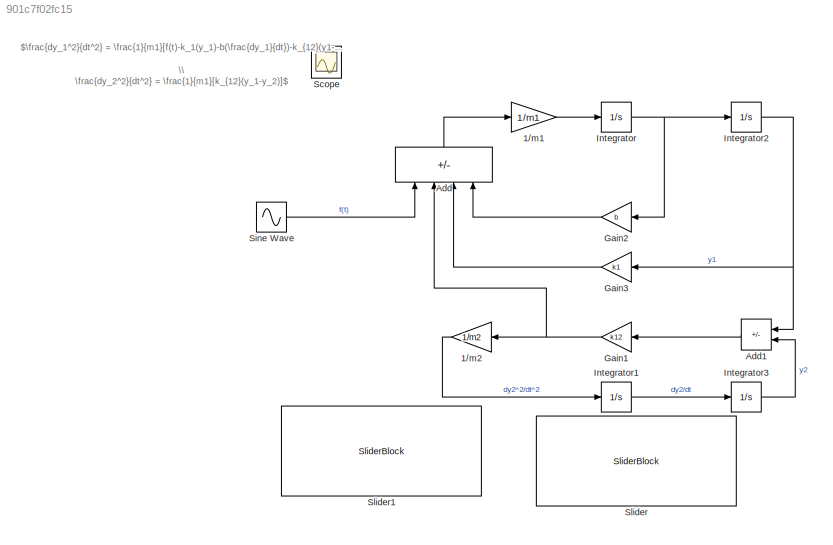
MODEL slx_901c7f02fc15
KIND model
CONFIG AbsTol = auto
CONFIG EnableMultiTasking = off
CONFIG FixedStep = auto
CONFIG MaxStep = 0.002
CONFIG MinStep = auto
CONFIG RelTol = 1e-3
CONFIG SampleTimeConstraint = Unconstrained
CONFIG SolverName = ode45
CONFIG StartTime = 0.0
CONFIG StopTime = 30.0
WORKSPACE source: mxarray member
WORKSPACE b: Simulink.Parameter (value not decoded)
WORKSPACE k1: Simulink.Parameter (value not decoded)
WORKSPACE k12: Simulink.Parameter (value not decoded)
WORKSPACE m1: Simulink.Parameter (value not decoded)
WORKSPACE m2: Simulink.Parameter (value not decoded)
BLOCK [Gain] 1//m1
  Gain = 1/m1
BLOCK [Gain] 1//m2
  Gain = 1/m2
  NameLocation = top
BLOCK [Sum] Add
  IconShape = rectangular
  Inputs = +---
  NameLocation = right
  Ports = [4, 1]
BLOCK [Sum] Add1
  IconShape = rectangular
  Inputs = +-
  NameLocation = top
  Ports = [2, 1]
BLOCK [Gain] Gain1
  Gain = k12
  NameLocation = top
BLOCK [Gain] Gain2
  Gain = b
  NameLocation = top
BLOCK [Gain] Gain3
  Gain = k1
  NameLocation = top
BLOCK [Integrator] Integrator
  Ports = [1, 1]
BLOCK [Integrator] Integrator1
  Ports = [1, 1]
BLOCK [Integrator] Integrator2
  Ports = [1, 1]
BLOCK [Integrator] Integrator3
  Ports = [1, 1]
BLOCK [Scope] Scope
  Floating = off
  IOType = viewer
  NumInputPorts = 1
  Ports = []
  ScopeSpecificationString = Simulink.scopes.TimeScopeBlockCfg('CurrentConfiguration', extmgr.ConfigurationSet(extmgr.Configuration('Core','General UI',true),extmgr.Configuration('Core','Source UI',true),extmgr.Configuration('Sources','WiredSimulink',true),extmgr.Configuration('Visuals','Time Domain',true,'SerializedDisplays',{struct('MinYLimReal','-0.00923','MaxYLimReal','0.00932','YLabelReal','','MinYLimMag','0.00000','MaxY...<+2752ch>
BLOCK [Sin] Sine Wave
  Amplitude = 2
  Frequency = 10
  Ports = [0, 1]
  SampleTime = 0
BLOCK [SliderBlock] Slider
  ScaleMax = 100000
  ScaleMin = 50000
BLOCK [SliderBlock] Slider1
  ScaleMax = 800
  ScaleMin = 500
ANNOTATION (root): $\frac{dy_1^2}{dt^2} = \frac{1}{m1}[f(t)-k_1(y_1)-b(\frac{dy_1}{dt})-k_{12}(y1-y2)] \\ \frac{dy_2^2}{dt^2} = \frac{1}{m1}[k_{12}(y_1-y_2)]$
LINE 1//m1:1 -> Integrator:1
LINE 1//m2:1 -> Integrator1:1
LINE Add1:1 -> Gain1:1
LINE Add:1 -> 1//m1:1
NET Gain1:1 -> 1//m2:1, Add:2
LINE Gain2:1 -> Add:4
LINE Gain3:1 -> Add:3
LINE Integrator1:1 -> Integrator3:1
NET Integrator2:1 -> Add1:1, Gain3:1
LINE Integrator3:1 -> Add1:2
NET Integrator:1 -> Gain2:1, Integrator2:1
LINE Sine Wave:1 -> Add:1
note: NET lines group one-source signal fan-out (src -> all destinations, sorted); 1:1 wires keep LINE
